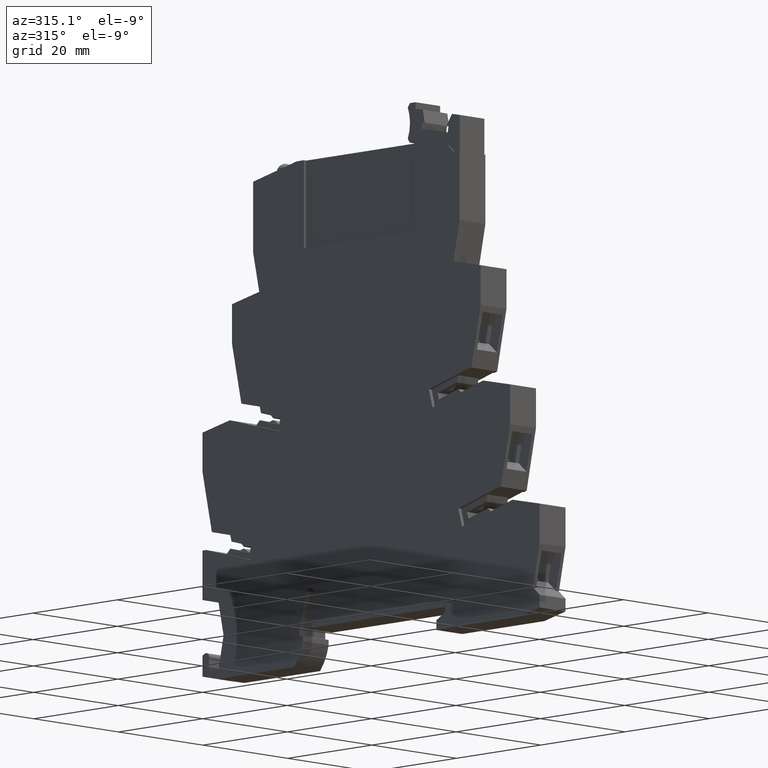
[diagram: clean part render]
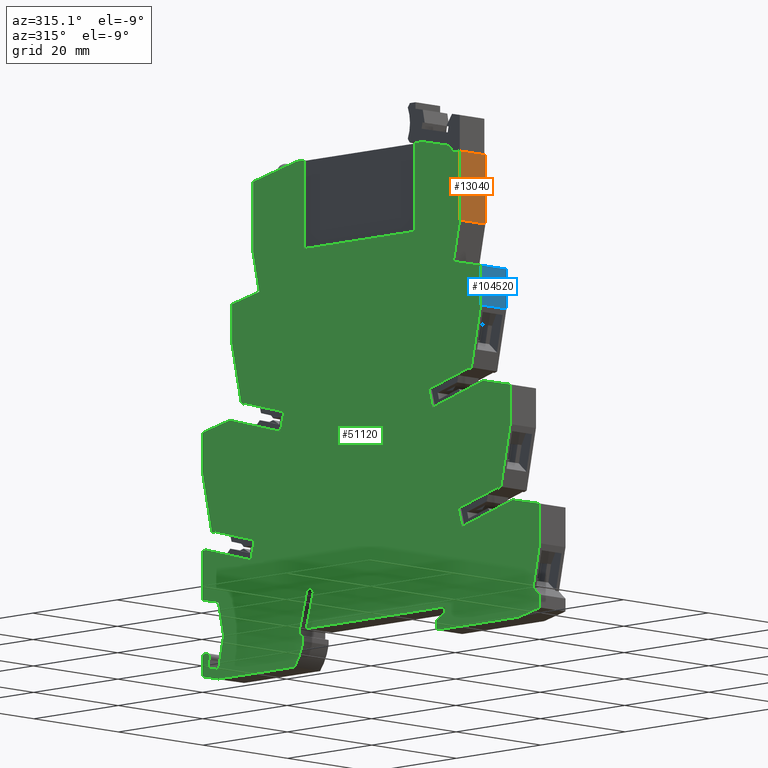
[diagram: same view with three faces highlighted in distinct colors, each labeled with its STEP entity id]
A machine part, auxiliary view with three faces highlighted in distinct colors.
Their STEP definitions:

[orange] entity #13040 — the highlighted planar face has unit normal (0, 1, -0).
#1720=CARTESIAN_POINT('',(-28.6010493288756,75.8542447664981,
-3.5527136788005E-15));
#1730=VERTEX_POINT('',#1720);
#1760=CARTESIAN_POINT('',(-28.6010493290614,64.5389695909309,
-2.04813943582849E-12));
#1770=DIRECTION('',(1.06627280559842E-13,1.,5.76150921084606E-16));
#1780=VECTOR('',#1770,1.);
#1790=LINE('',#1760,#1780);
#1800=CARTESIAN_POINT('',(-28.6010493290589,87.583147942921,
-2.03392858111329E-12));
#1810=VERTEX_POINT('',#1800);
#1820=EDGE_CURVE('',#1730,#1810,#1790,.T.);
#12740=CARTESIAN_POINT('',(-28.6010493290602,75.8542447673665,
-2.95230506708322E-12));
#12750=DIRECTION('',(1.,-1.06627280559842E-13,6.88518490957562E-14));
#12760=DIRECTION('',(-1.06627280559842E-13,-1.,-5.76150921084404E-16));
#12770=AXIS2_PLACEMENT_3D('',#12740,#12750,#12760);
#12780=PLANE('',#12770);
#12790=CARTESIAN_POINT('',(-28.6010493288651,87.5831479429395,
-13.900000000002));
#12800=DIRECTION('',(-6.05765437811069E-15,-5.76150921083959E-16,1.));
#12810=VECTOR('',#12800,1.);
#12820=LINE('',#12790,#12810);
#12830=CARTESIAN_POINT('',(-28.6010493290585,87.5831479429395,
-6.10000000000513));
#12840=VERTEX_POINT('',#12830);
#12850=EDGE_CURVE('',#12840,#1810,#12820,.T.);
#12860=ORIENTED_EDGE('',*,*,#12850,.F.);
#12870=ORIENTED_EDGE('',*,*,#1820,.T.);
#12880=CARTESIAN_POINT('',(-28.6010493290592,75.8542447673665,
-13.900000000002));
#12890=DIRECTION('',(-6.88518490957248E-14,2.9484730824779E-13,1.));
#12900=VECTOR('',#12890,1.);
#12910=LINE('',#12880,#12900);
#12920=CARTESIAN_POINT('',(-28.6010493290598,75.8542447673688,
-6.10000000000514));
#12930=VERTEX_POINT('',#12920);
#12940=EDGE_CURVE('',#12930,#1730,#12910,.T.);
#12950=ORIENTED_EDGE('',*,*,#12940,.T.);
#12960=CARTESIAN_POINT('',(-28.6010493290687,-8.45742666263268,
-6.10000000000518));
#12970=DIRECTION('',(1.06627280559842E-13,1.,5.76150921084798E-16));
#12980=VECTOR('',#12970,1.);
#12990=LINE('',#12960,#12980);
#13000=EDGE_CURVE('',#12930,#12840,#12990,.T.);
#13010=ORIENTED_EDGE('',*,*,#13000,.F.);
#13020=EDGE_LOOP('',(#13010,#12950,#12870,#12860));
#13030=FACE_OUTER_BOUND('',#13020,.T.);
#13040=ADVANCED_FACE('',(#13030),#12780,.F.);

[blue] entity #104520 — the highlighted planar face has unit normal (-0, 1, 0).
#1480=CARTESIAN_POINT('',(-33.6010493289925,60.8995198598723,
-2.28617125230812E-12));
#1490=VERTEX_POINT('',#1480);
#1520=CARTESIAN_POINT('',(-33.6010493289984,-8.45742666262793,
-2.28617125230812E-12));
#1530=DIRECTION('',(-8.59705591847893E-14,-1.,4.03965808802365E-27));
#1540=VECTOR('',#1530,1.);
#1550=LINE('',#1520,#1540);
#1560=CARTESIAN_POINT('',(-33.6010493289919,67.6331479428718,
-2.28705943072782E-12));
#1570=VERTEX_POINT('',#1560);
#1580=EDGE_CURVE('',#1570,#1490,#1550,.T.);
#49320=CARTESIAN_POINT('',(-33.6010493289921,67.6331479428718,
-6.1000000000037));
#49330=VERTEX_POINT('',#49320);
#49360=CARTESIAN_POINT('',(-33.6010493289924,64.5389695909299,
-6.10000000000199));
#49370=DIRECTION('',(-8.59705591847893E-14,-1.,-1.74170627111484E-27));
#49380=VECTOR('',#49370,1.);
#49390=LINE('',#49360,#49380);
#49400=CARTESIAN_POINT('',(-33.6010493289927,60.8995198598723,
-6.1000000000037));
#49410=VERTEX_POINT('',#49400);
#49420=EDGE_CURVE('',#49330,#49410,#49390,.T.);
#52860=CARTESIAN_POINT('',(-33.6010493289925,67.6331479428718,
-0.800000000005311));
#52870=DIRECTION('',(-1.0020697770065E-13,1.03479815318498E-26,-1.));
#52880=VECTOR('',#52870,1.);
#52890=LINE('',#52860,#52880);
#52900=EDGE_CURVE('',#1570,#49330,#52890,.T.);
#70240=CARTESIAN_POINT('',(-33.601049328993,60.8995198598721,
-0.800000000005311));
#70250=DIRECTION('',(-1.0020697770065E-13,1.04053711627046E-26,-1.));
#70260=VECTOR('',#70250,1.);
#70270=LINE('',#70240,#70260);
#70280=EDGE_CURVE('',#1490,#49410,#70270,.T.);
#104410=CARTESIAN_POINT('',(-33.6010493289921,67.6331479428718,
-6.10000000000447));
#104420=DIRECTION('',(1.,-8.59705591847893E-14,-3.74127829830043E-14));
#104430=DIRECTION('',(8.59705591847893E-14,1.,-3.71090030577279E-27));
#104440=AXIS2_PLACEMENT_3D('',#104410,#104420,#104430);
#104450=PLANE('',#104440);
#104460=ORIENTED_EDGE('',*,*,#49420,.T.);
#104470=ORIENTED_EDGE('',*,*,#52900,.T.);
#104480=ORIENTED_EDGE('',*,*,#1580,.F.);
#104490=ORIENTED_EDGE('',*,*,#70280,.F.);
#104500=EDGE_LOOP('',(#104490,#104480,#104470,#104460));
#104510=FACE_OUTER_BOUND('',#104500,.T.);
#104520=ADVANCED_FACE('',(#104510),#104450,.F.);

[green] entity #51120 — the highlighted planar face has unit normal (-1, 0, 0).
#6120=CARTESIAN_POINT('',(31.9989506709704,9.03370329290591,
-6.100000000001));
#6130=VERTEX_POINT('',#6120);
#6160=CARTESIAN_POINT('',(1.74895067094092,26.4985489359134,
-6.10000000000308));
#6170=DIRECTION('',(0.866025403784385,-0.500000000000092,
5.93414206662146E-14));
#6180=VECTOR('',#6170,1.);
#6190=LINE('',#6160,#6180);
#6200=CARTESIAN_POINT('',(32.3989506709844,8.80276318522189,
-6.10000000000097));
#6210=VERTEX_POINT('',#6200);
#6220=EDGE_CURVE('',#6130,#6210,#6190,.T.);
#8790=CARTESIAN_POINT('',(-17.9510493290123,75.1331479429036,
-6.1000000000044));
#8800=VERTEX_POINT('',#8790);
#8830=CARTESIAN_POINT('',(1.74895067094092,75.1331479429026,
-6.10000000000305));
#8840=DIRECTION('',(1.,-5.35592122515322E-14,6.88518490957563E-14));
#8850=VECTOR('',#8840,1.);
#8860=LINE('',#8830,#8850);
#8870=CARTESIAN_POINT('',(8.34895067098787,75.1331479429022,
-6.10000000000259));
#8880=VERTEX_POINT('',#8870);
#8890=EDGE_CURVE('',#8800,#8880,#8860,.T.);
#11100=CARTESIAN_POINT('',(13.9656962601114,44.7960089430289,
-6.10000000000222));
#11110=VERTEX_POINT('',#11100);
#11280=CARTESIAN_POINT('',(13.1115934112808,47.9835641697545,
-6.10000000000228));
#11290=VERTEX_POINT('',#11280);
#11320=CARTESIAN_POINT('',(28.2349113248289,-8.45742666263268,
-6.10000000000127));
#11330=DIRECTION('',(0.258819045102482,-0.965925826289079,
1.7277845820729E-14));
#11340=VECTOR('',#11330,1.);
#11350=LINE('',#11320,#11340);
#11360=EDGE_CURVE('',#11290,#11110,#11350,.T.);
#12830=CARTESIAN_POINT('',(-28.6010493290585,87.5831479429395,
-6.10000000000513));
#12840=VERTEX_POINT('',#12830);
#12920=CARTESIAN_POINT('',(-28.6010493290598,75.8542447673688,
-6.10000000000514));
#12930=VERTEX_POINT('',#12920);
#12960=CARTESIAN_POINT('',(-28.6010493290687,-8.45742666263268,
-6.10000000000518));
#12970=DIRECTION('',(1.06627280559842E-13,1.,5.76150921084798E-16));
#12980=VECTOR('',#12970,1.);
#12990=LINE('',#12960,#12980);
#13000=EDGE_CURVE('',#12930,#12840,#12990,.T.);
#14260=CARTESIAN_POINT('',(1.74895067094092,41.522541788591,
-6.10000000000307));
#14270=DIRECTION('',(0.965925826289113,0.258819045102354,
6.66272592653172E-14));
#14280=VECTOR('',#14270,1.);
#14290=LINE('',#14260,#14280);
#14300=CARTESIAN_POINT('',(25.9431765231824,48.0053650671908,
-6.1000000000014));
#14310=VERTEX_POINT('',#14300);
#14320=EDGE_CURVE('',#11110,#14310,#14290,.T.);
#15130=CARTESIAN_POINT('',(22.5148305366235,50.5031539240414,
-6.10000000000163));
#15140=VERTEX_POINT('',#15130);
#15170=CARTESIAN_POINT('',(1.74895067094092,44.938953183917,
-6.10000000000306));
#15180=DIRECTION('',(-0.96592582628915,-0.258819045102215,
-6.66272592653172E-14));
#15190=VECTOR('',#15180,1.);
#15200=LINE('',#15170,#15190);
#15210=EDGE_CURVE('',#15140,#11290,#15200,.T.);
#20310=CARTESIAN_POINT('',(10.6160940885706,4.43314794290278,
-6.10000000000248));
#20320=VERTEX_POINT('',#20310);
#20400=CARTESIAN_POINT('',(28.5989506709844,4.43314794290088,
-6.10000000000124));
#20410=VERTEX_POINT('',#20400);
#20440=CARTESIAN_POINT('',(1.74895067094092,4.43314794290373,
-6.10000000000309));
#20450=DIRECTION('',(-1.,1.06264632078761E-13,-6.88518490957562E-14));
#20460=VECTOR('',#20450,1.);
#20470=LINE('',#20440,#20460);
#20480=EDGE_CURVE('',#20410,#20320,#20470,.T.);
#22570=CARTESIAN_POINT('',(-25.1010493290152,9.73314794290628,
-6.10000000000493));
#22580=VERTEX_POINT('',#22570);
#22660=CARTESIAN_POINT('',(-25.1010493290156,10.6331479429065,
-6.10000000000493));
#22670=VERTEX_POINT('',#22660);
#22700=CARTESIAN_POINT('',(-25.1010493290176,-8.45742666263268,
-6.10000000000494));
#22710=DIRECTION('',(-1.06445956345116E-13,-1.,-5.76150921084786E-16));
#22720=VECTOR('',#22710,1.);
#22730=LINE('',#22700,#22720);
#22740=EDGE_CURVE('',#22670,#22580,#22730,.T.);
#22950=CARTESIAN_POINT('',(-37.7169289085011,29.5031538869772,
-6.10000000000579));
#22960=VERTEX_POINT('',#22950);
#23360=CARTESIAN_POINT('',(-28.3136920694185,26.9835641697074,
-6.10000000000514));
#23370=VERTEX_POINT('',#23360);
#23400=CARTESIAN_POINT('',(1.74895067094092,18.9283033250858,
-6.10000000000308));
#23410=DIRECTION('',(-0.965925826289093,0.258819045102429,
-6.63497035091609E-14));
#23420=VECTOR('',#23410,1.);
#23430=LINE('',#23400,#23420);
#23440=EDGE_CURVE('',#23370,#22960,#23430,.T.);
#26530=CARTESIAN_POINT('',(-19.7510496118478,90.1331479128581,
-6.10000000000452));
#26540=VERTEX_POINT('',#26530);
#26710=CARTESIAN_POINT('',(-25.9737184903316,88.8104787815217,
-6.10000000000495));
#26720=VERTEX_POINT('',#26710);
#26750=CARTESIAN_POINT('',(1.74895067094092,94.7031140187543,
-6.10000000000304));
#26760=DIRECTION('',(0.978147600733827,0.207911690817657,
6.74738043215939E-14));
#26770=VECTOR('',#26760,1.);
#26780=LINE('',#26750,#26770);
#26790=EDGE_CURVE('',#26720,#26540,#26780,.T.);
#26950=CARTESIAN_POINT('',(-17.9510493290112,90.1331479128579,
-6.1000000000044));
#26960=VERTEX_POINT('',#26950);
#27060=CARTESIAN_POINT('',(1.74895067094092,90.1331479128558,
-6.10000000000304));
#27070=DIRECTION('',(1.,-1.06264632095783E-13,6.88518490957562E-14));
#27080=VECTOR('',#27070,1.);
#27090=LINE('',#27060,#27080);
#27100=EDGE_CURVE('',#26540,#26960,#27090,.T.);
#27710=CARTESIAN_POINT('',(-27.2010493289862,87.5831479428673,
-6.10000000000503));
#27720=VERTEX_POINT('',#27710);
#27750=CARTESIAN_POINT('',(1.74895067094092,116.533147942791,
-6.10000000000302));
#27760=DIRECTION('',(0.707106781186593,0.707106781186502,
4.90996132640476E-14));
#27770=VECTOR('',#27760,1.);
#27780=LINE('',#27750,#27770);
#27790=EDGE_CURVE('',#27720,#26720,#27780,.T.);
#29610=CARTESIAN_POINT('',(27.4063960526576,11.6852159380575,
-6.10000000000132));
#29620=VERTEX_POINT('',#29610);
#29650=CARTESIAN_POINT('',(31.6596559868637,-8.45742666263268,
-6.10000000000104));
#29660=DIRECTION('',(-0.206601329565419,0.978425209518746,
-1.36418654150816E-14));
#29670=VECTOR('',#29660,1.);
#29680=LINE('',#29650,#29670);
#29690=CARTESIAN_POINT('',(28.599829422497,6.03333897585019,
-6.10000000000124));
#29700=VERTEX_POINT('',#29690);
#29710=EDGE_CURVE('',#29700,#29620,#29680,.T.);
#29990=CARTESIAN_POINT('',(30.8989506709376,6.53314794290252,
-6.10000000000108));
#30000=VERTEX_POINT('',#29990);
#30030=CARTESIAN_POINT('',(30.8989506709386,-8.45742666263268,
-6.10000000000109));
#30040=DIRECTION('',(6.74696212158443E-14,-1.,-5.76150921072814E-16));
#30050=VECTOR('',#30040,1.);
#30060=LINE('',#30030,#30050);
#30070=CARTESIAN_POINT('',(30.8989506709375,7.95358463520083,
-6.10000000000103));
#30080=VERTEX_POINT('',#30070);
#30090=EDGE_CURVE('',#30080,#30000,#30060,.T.);
#30340=CARTESIAN_POINT('',(31.5989506709376,8.34088296982149,
-6.10000000000103));
#30350=DIRECTION('',(-1.22464679914797E-16,-5.76150921084529E-16,1.));
#30360=DIRECTION('',(1.,1.49299883353168E-14,1.22464679914805E-16));
#30370=AXIS2_PLACEMENT_3D('',#30340,#30350,#30360);
#30380=CIRCLE('',#30370,0.8);
#30390=EDGE_CURVE('',#6130,#30080,#30380,.T.);
#30590=CARTESIAN_POINT('',(1.74895067094092,0.196191421163633,
-6.10000000000309));
#30600=DIRECTION('',(-0.977176363922798,-0.212429644331059,
-6.74182931703626E-14));
#30610=VECTOR('',#30600,1.);
#30620=LINE('',#30590,#30610);
#30630=EDGE_CURVE('',#30000,#29700,#30620,.T.);
#32050=CARTESIAN_POINT('',(7.79895067098446,10.6331479429029,
-6.10000000000267));
#32060=VERTEX_POINT('',#32050);
#32090=CARTESIAN_POINT('',(1.74895067094092,10.6331479429037,
-6.10000000000308));
#32100=DIRECTION('',(-1.,1.06264632078761E-13,-6.88518490957562E-14));
#32110=VECTOR('',#32100,1.);
#32120=LINE('',#32090,#32110);
#32130=EDGE_CURVE('',#32060,#22670,#32120,.T.);
#32510=CARTESIAN_POINT('',(20.3989506709407,75.8542454634982,
-6.10000000000176));
#32520=VERTEX_POINT('',#32510);
#32550=CARTESIAN_POINT('',(2.4779515351373,-8.45742666263268,
-6.10000000000305));
#32560=DIRECTION('',(-0.207911690818012,-0.978147600733752,
-1.48769885299771E-14));
#32570=VECTOR('',#32560,1.);
#32580=LINE('',#32550,#32570);
#32590=CARTESIAN_POINT('',(18.926618714528,68.9274682102203,
-6.10000000000187));
#32600=VERTEX_POINT('',#32590);
#32610=EDGE_CURVE('',#32520,#32600,#32580,.T.);
#32880=CARTESIAN_POINT('',(9.39895067098437,10.6331479429011,
-6.10000000000256));
#32890=VERTEX_POINT('',#32880);
#32970=CARTESIAN_POINT('',(9.39895067098426,9.6831479429027,
-6.10000000000256));
#32980=VERTEX_POINT('',#32970);
#33010=CARTESIAN_POINT('',(9.39895067098233,-8.45742666263268,
-6.10000000000257));
#33020=DIRECTION('',(1.06445956345116E-13,1.,5.76150921084786E-16));
#33030=VECTOR('',#33020,1.);
#33040=LINE('',#33010,#33030);
#33050=EDGE_CURVE('',#32980,#32890,#33040,.T.);
#33220=CARTESIAN_POINT('',(1.74895067094092,53.1480065266215,
-6.10000000000306));
#33230=DIRECTION('',(0.978147600733721,-0.207911690818157,
6.72517597166689E-14));
#33240=VECTOR('',#33230,1.);
#33250=LINE('',#33220,#33240);
#33260=CARTESIAN_POINT('',(32.398950523005,46.6331479428671,
-6.10000000000665));
#33270=VERTEX_POINT('',#33260);
#33280=EDGE_CURVE('',#14310,#33270,#33250,.T.);
#33920=CARTESIAN_POINT('',(20.9656962601106,23.7960089430282,
-6.10000000000175));
#33930=VERTEX_POINT('',#33920);
#34100=CARTESIAN_POINT('',(20.11159341128,26.983564169754,
-6.10000000000181));
#34110=VERTEX_POINT('',#34100);
#34140=CARTESIAN_POINT('',(29.6079782837753,-8.45742666263268,
-6.10000000000118));
#34150=DIRECTION('',(0.258819045102482,-0.965925826289079,
1.7277845820729E-14));
#34160=VECTOR('',#34150,1.);
#34170=LINE('',#34140,#34160);
#34180=EDGE_CURVE('',#34110,#33930,#34170,.T.);
#34760=CARTESIAN_POINT('',(32.3989506709826,-8.45742666263268,
-6.10000000000099));
#34770=DIRECTION('',(-1.06445956345116E-13,-1.,-5.76150921084786E-16));
#34780=VECTOR('',#34770,1.);
#34790=LINE('',#34760,#34780);
#34800=CARTESIAN_POINT('',(32.398950670984,5.23314794290049,
-6.10000000000098));
#34810=VERTEX_POINT('',#34800);
#34820=EDGE_CURVE('',#6210,#34810,#34790,.T.);
#35070=CARTESIAN_POINT('',(1.74895067094092,-1.21948363605273,
-6.10000000000309));
#35080=DIRECTION('',(-0.97854978498677,-0.206010481049744,
-6.75015598972095E-14));
#35090=VECTOR('',#35080,1.);
#35100=LINE('',#35070,#35090);
#35110=EDGE_CURVE('',#34810,#20410,#35100,.T.);
#35390=CARTESIAN_POINT('',(10.0489505230314,90.1331479429302,
-6.10000000000247));
#35400=VERTEX_POINT('',#35390);
#35430=CARTESIAN_POINT('',(1.74895067094092,91.9775923545063,
-6.10000000000304));
#35440=DIRECTION('',(0.976187060183942,-0.216930457818704,
6.70991040507829E-14));
#35450=VECTOR('',#35440,1.);
#35460=LINE('',#35430,#35450);
#35470=CARTESIAN_POINT('',(20.3989506709415,87.8331479100607,
-6.10000000000176));
#35480=VERTEX_POINT('',#35470);
#35490=EDGE_CURVE('',#35400,#35480,#35460,.T.);
#36150=CARTESIAN_POINT('',(8.59895067098442,8.59407599993581,
-6.10000000000261));
#36160=VERTEX_POINT('',#36150);
#36190=CARTESIAN_POINT('',(8.5989506709826,-8.45742666263268,
-6.10000000000262));
#36200=DIRECTION('',(1.06264632090662E-13,1.,5.76150921084773E-16));
#36210=VECTOR('',#36200,1.);
#36220=LINE('',#36190,#36210);
#36230=CARTESIAN_POINT('',(8.5989506709845,9.46878858895822,
-6.10000000000261));
#36240=VERTEX_POINT('',#36230);
#36250=EDGE_CURVE('',#36160,#36240,#36220,.T.);
#37780=CARTESIAN_POINT('',(6.17860602899768,16.4173491186215,
-6.10000000000278));
#37790=VERTEX_POINT('',#37780);
#37820=CARTESIAN_POINT('',(13.1468473527913,-8.45742666263268,
-6.10000000000231));
#37830=DIRECTION('',(0.269748530351836,-0.962930802484283,
1.80411241501588E-14));
#37840=VECTOR('',#37830,1.);
#37850=LINE('',#37820,#37840);
#37860=EDGE_CURVE('',#37790,#32060,#37850,.T.);
#38820=CARTESIAN_POINT('',(1.74895067094092,-5.76870678481362,
-6.10000000000309));
#38830=DIRECTION('',(0.866025403784386,-0.500000000000092,
5.93414206662146E-14));
#38840=VECTOR('',#38830,1.);
#38850=LINE('',#38820,#38840);
#38860=CARTESIAN_POINT('',(-23.1010493290159,8.57844740452747,
-6.1000000000048));
#38870=VERTEX_POINT('',#38860);
#38880=EDGE_CURVE('',#22580,#38870,#38850,.T.);
#39130=CARTESIAN_POINT('',(-23.1010493290178,-8.45742666263268,
-6.10000000000481));
#39140=DIRECTION('',(-1.06445956345116E-13,-1.,-5.76150921084786E-16));
#39150=VECTOR('',#39140,1.);
#39160=LINE('',#39130,#39150);
#39170=CARTESIAN_POINT('',(-23.1010493290161,6.93314794290058,
-6.1000000000048));
#39180=VERTEX_POINT('',#39170);
#39190=EDGE_CURVE('',#38870,#39180,#39160,.T.);
#39440=CARTESIAN_POINT('',(1.74895067094092,6.93314794289794,
-6.10000000000309));
#39450=DIRECTION('',(-1.,1.06445956333214E-13,-6.88518490957562E-14));
#39460=VECTOR('',#39450,1.);
#39470=LINE('',#39440,#39460);
#39480=CARTESIAN_POINT('',(-42.5510493290017,6.93314794290266,
-6.10000000000614));
#39490=VERTEX_POINT('',#39480);
#39500=EDGE_CURVE('',#39180,#39490,#39470,.T.);
#39750=CARTESIAN_POINT('',(1.74895067094092,-2.48310773907181,
-6.10000000000309));
#39760=DIRECTION('',(-0.978147600733785,0.207911690817859,
-6.7237881928861E-14));
#39770=VECTOR('',#39760,1.);
#39780=LINE('',#39750,#39770);
#39790=CARTESIAN_POINT('',(-47.6010493290191,8.00655857934053,
-6.10000000000648));
#39800=VERTEX_POINT('',#39790);
#39810=EDGE_CURVE('',#39490,#39800,#39780,.T.);
#40060=CARTESIAN_POINT('',(-47.6010493290209,-8.45742666263268,
-6.10000000000649));
#40070=DIRECTION('',(1.06264632074879E-13,1.,5.76150921084773E-16));
#40080=VECTOR('',#40070,1.);
#40090=LINE('',#40060,#40080);
#40100=CARTESIAN_POINT('',(-47.6010493290189,10.1874016427028,
-6.10000000000648));
#40110=VERTEX_POINT('',#40100);
#40120=EDGE_CURVE('',#39800,#40110,#40090,.T.);
#41470=CARTESIAN_POINT('',(32.3989506709854,18.2331479429005,
-6.10000000000097));
#41480=VERTEX_POINT('',#41470);
#41560=CARTESIAN_POINT('',(32.3989506710255,26.6331479428954,
-6.10000000000097));
#41570=VERTEX_POINT('',#41560);
#41600=CARTESIAN_POINT('',(32.3989506710218,-8.45742666263268,
-6.10000000000099));
#41610=DIRECTION('',(-1.06445956345116E-13,-1.,-5.76150921084786E-16));
#41620=VECTOR('',#41610,1.);
#41630=LINE('',#41600,#41620);
#41640=EDGE_CURVE('',#41570,#41480,#41630,.T.);
#45330=CARTESIAN_POINT('',(1.74895067094092,7.633336620794,
-6.10000000000309));
#45340=DIRECTION('',(0.965925826289096,0.258819045102418,
6.6641137053125E-14));
#45350=VECTOR('',#45340,1.);
#45360=LINE('',#45330,#45350);
#45370=EDGE_CURVE('',#36240,#32980,#45360,.T.);
#46430=CARTESIAN_POINT('',(1.74895067094092,87.5831479429363,
-6.10000000000304));
#46440=DIRECTION('',(1.,-1.06627280562636E-13,6.88518490957562E-14));
#46450=VECTOR('',#46440,1.);
#46460=LINE('',#46430,#46450);
#46470=EDGE_CURVE('',#12840,#27720,#46460,.T.);
#47550=CARTESIAN_POINT('',(32.3989506709835,-0.0400571378610444,
-6.10000000000098));
#47560=DIRECTION('',(6.88518490957563E-14,5.76150921077459E-16,-1.));
#47570=DIRECTION('',(-1.06445956345116E-13,-1.,-5.76150921084788E-16));
#47580=AXIS2_PLACEMENT_3D('',#47550,#47560,#47570);
#47590=PLANE('',#47580);
#47600=ORIENTED_EDGE('',*,*,#20480,.T.);
#47610=ORIENTED_EDGE('',*,*,#35110,.T.);
#47620=ORIENTED_EDGE('',*,*,#34820,.T.);
#47630=ORIENTED_EDGE('',*,*,#6220,.T.);
#47640=ORIENTED_EDGE('',*,*,#30390,.F.);
#47650=ORIENTED_EDGE('',*,*,#30090,.F.);
#47660=ORIENTED_EDGE('',*,*,#30630,.F.);
#47670=ORIENTED_EDGE('',*,*,#29710,.F.);
#47680=CARTESIAN_POINT('',(23.1658397156679,-8.45742666263268,
-6.10000000000162));
#47690=DIRECTION('',(-0.206010481049947,-0.978549784986727,
-1.47520884397068E-14));
#47700=VECTOR('',#47690,1.);
#47710=LINE('',#47680,#47700);
#47720=CARTESIAN_POINT('',(28.6173002801216,17.4370110185084,
-6.10000000000123));
#47730=VERTEX_POINT('',#47720);
#47740=EDGE_CURVE('',#47730,#29620,#47710,.T.);
#47750=ORIENTED_EDGE('',*,*,#47740,.T.);
#47760=CARTESIAN_POINT('',(1.74895067094092,11.780516363947,
-6.10000000000308));
#47770=DIRECTION('',(-0.97854978498677,-0.206010481049741,
-6.75015598972095E-14));
#47780=VECTOR('',#47770,1.);
#47790=LINE('',#47760,#47780);
#47800=EDGE_CURVE('',#41480,#47730,#47790,.T.);
#47810=ORIENTED_EDGE('',*,*,#47800,.T.);
#47820=ORIENTED_EDGE('',*,*,#41640,.T.);
#47830=CARTESIAN_POINT('',(1.74895067094092,26.6331479428987,
-6.10000000000308));
#47840=DIRECTION('',(1.,-1.06264632078761E-13,6.88518490957562E-14));
#47850=VECTOR('',#47840,1.);
#47860=LINE('',#47830,#47850);
#47870=CARTESIAN_POINT('',(31.5540430077884,26.6331479428955,
-6.10000000000102));
#47880=VERTEX_POINT('',#47870);
#47890=EDGE_CURVE('',#47880,#41570,#47860,.T.);
#47900=ORIENTED_EDGE('',*,*,#47890,.T.);
#47910=CARTESIAN_POINT('',(1.74895067094092,18.6468975209113,
-6.10000000000308));
#47920=DIRECTION('',(0.965925826289142,0.258819045102245,
6.6641137053125E-14));
#47930=VECTOR('',#47920,1.);
#47940=LINE('',#47910,#47930);
#47950=EDGE_CURVE('',#33930,#47880,#47940,.T.);
#47960=ORIENTED_EDGE('',*,*,#47950,.T.);
#47970=ORIENTED_EDGE('',*,*,#34180,.T.);
#47980=CARTESIAN_POINT('',(1.74895067094092,22.0633088765823,
-6.10000000000308));
#47990=DIRECTION('',(-0.965925826289113,-0.258819045102355,
-6.66272592653172E-14));
#48000=VECTOR('',#47990,1.);
#48010=LINE('',#47980,#48000);
#48020=CARTESIAN_POINT('',(29.5148302504916,29.5031538870577,
-6.10000000000116));
#48030=VERTEX_POINT('',#48020);
#48040=EDGE_CURVE('',#48030,#34110,#48010,.T.);
#48050=ORIENTED_EDGE('',*,*,#48040,.T.);
#48060=CARTESIAN_POINT('',(39.6863371529631,-8.45742666263268,
-6.10000000000048));
#48070=DIRECTION('',(-0.2588190451017,0.965925826289288,
-1.7277845820729E-14));
#48080=VECTOR('',#48070,1.);
#48090=LINE('',#48060,#48080);
#48100=CARTESIAN_POINT('',(29.5536458866786,29.3582919606791,
-6.10000000000116));
#48110=VERTEX_POINT('',#48100);
#48120=EDGE_CURVE('',#48110,#48030,#48090,.T.);
#48130=ORIENTED_EDGE('',*,*,#48120,.T.);
#48140=CARTESIAN_POINT('',(1.74895067094092,21.9080463318541,
-6.10000000000308));
#48150=DIRECTION('',(-0.965925826289288,-0.258819045101701,
-6.66272592653172E-14));
#48160=VECTOR('',#48150,1.);
#48170=LINE('',#48140,#48160);
#48180=CARTESIAN_POINT('',(30.1948635032599,29.5301057032142,
-6.10000000000112));
#48190=VERTEX_POINT('',#48180);
#48200=EDGE_CURVE('',#48190,#48110,#48170,.T.);
#48210=ORIENTED_EDGE('',*,*,#48200,.T.);
#48220=CARTESIAN_POINT('',(22.1203642372364,-8.45742666263268,
-6.10000000000169));
#48230=DIRECTION('',(-0.207911690818012,-0.978147600733752,
-1.48769885299771E-14));
#48240=VECTOR('',#48230,1.);
#48250=LINE('',#48220,#48240);
#48260=CARTESIAN_POINT('',(32.3989505230042,39.8995198598676,
-6.10000000000665));
#48270=VERTEX_POINT('',#48260);
#48280=EDGE_CURVE('',#48270,#48190,#48250,.T.);
#48290=ORIENTED_EDGE('',*,*,#48280,.T.);
#48300=CARTESIAN_POINT('',(32.3989505229954,-29.4574266626326,
-6.10000000000665));
#48310=DIRECTION('',(-1.26558704972732E-13,-1.,5.5507211519745E-27));
#48320=VECTOR('',#48310,1.);
#48330=LINE('',#48300,#48320);
#48340=EDGE_CURVE('',#33270,#48270,#48330,.T.);
#48350=ORIENTED_EDGE('',*,*,#48340,.T.);
#48360=ORIENTED_EDGE('',*,*,#33280,.T.);
#48370=ORIENTED_EDGE('',*,*,#14320,.T.);
#48380=ORIENTED_EDGE('',*,*,#11360,.T.);
#48390=ORIENTED_EDGE('',*,*,#15210,.T.);
#48400=CARTESIAN_POINT('',(38.3132704900853,-8.45742666263268,
-6.10000000000058));
#48410=DIRECTION('',(-0.258819045102404,0.9659258262891,
-1.7277845820729E-14));
#48420=VECTOR('',#48410,1.);
#48430=LINE('',#48400,#48420);
#48440=CARTESIAN_POINT('',(22.5536461827134,50.3582919607052,
-6.10000000000163));
#48450=VERTEX_POINT('',#48440);
#48460=EDGE_CURVE('',#48450,#15140,#48430,.T.);
#48470=ORIENTED_EDGE('',*,*,#48460,.T.);
#48480=CARTESIAN_POINT('',(1.74895067094092,44.783690599553,
-6.10000000000306));
#48490=DIRECTION('',(-0.965925826289099,-0.258819045102405,
-6.66272592653172E-14));
#48500=VECTOR('',#48490,1.);
#48510=LINE('',#48480,#48500);
#48520=CARTESIAN_POINT('',(23.1948634854665,50.5301056191509,
-6.10000000000159));
#48530=VERTEX_POINT('',#48520);
#48540=EDGE_CURVE('',#48530,#48450,#48510,.T.);
#48550=ORIENTED_EDGE('',*,*,#48540,.T.);
#48560=CARTESIAN_POINT('',(10.6566764422352,-8.45742666263268,
-6.10000000000248));
#48570=DIRECTION('',(-0.207911690818012,-0.978147600733752,
-1.48769885299771E-14));
#48580=VECTOR('',#48570,1.);
#48590=LINE('',#48560,#48580);
#48600=CARTESIAN_POINT('',(25.3989505230042,60.8995198598501,
-6.0999999999997));
#48610=VERTEX_POINT('',#48600);
#48620=EDGE_CURVE('',#48610,#48530,#48590,.T.);
#48630=ORIENTED_EDGE('',*,*,#48620,.T.);
#48640=CARTESIAN_POINT('',(25.3989505229954,-8.4574266626501,
-6.0999999999997));
#48650=DIRECTION('',(-1.26558704972732E-13,-1.,5.5507211519745E-27));
#48660=VECTOR('',#48650,1.);
#48670=LINE('',#48640,#48660);
#48680=CARTESIAN_POINT('',(25.3989505230051,67.6331479428497,
-6.0999999999997));
#48690=VERTEX_POINT('',#48680);
#48700=EDGE_CURVE('',#48690,#48610,#48670,.T.);
#48710=ORIENTED_EDGE('',*,*,#48700,.T.);
#48720=CARTESIAN_POINT('',(1.74895067094092,72.6601105949312,
-6.10000000000305));
#48730=DIRECTION('',(0.978147600733705,-0.207911690818232,
6.7237881928861E-14));
#48740=VECTOR('',#48730,1.);
#48750=LINE('',#48720,#48740);
#48760=CARTESIAN_POINT('',(18.9937630692096,68.994612564902,
-6.10000000000186));
#48770=VERTEX_POINT('',#48760);
#48780=EDGE_CURVE('',#48770,#48690,#48750,.T.);
#48790=ORIENTED_EDGE('',*,*,#48780,.T.);
#48800=CARTESIAN_POINT('',(1.74895067094092,51.7498001666351,
-6.10000000000306));
#48810=DIRECTION('',(-0.707106781186585,-0.70710678118651,
-4.90996132640475E-14));
#48820=VECTOR('',#48810,1.);
#48830=LINE('',#48800,#48820);
#48840=EDGE_CURVE('',#48770,#32600,#48830,.T.);
#48850=ORIENTED_EDGE('',*,*,#48840,.F.);
#48860=ORIENTED_EDGE('',*,*,#32610,.T.);
#48870=CARTESIAN_POINT('',(20.3989506709313,-8.45742666263268,
-6.10000000000181));
#48880=DIRECTION('',(-1.06627280585922E-13,-1.,-5.76150921084798E-16));
#48890=VECTOR('',#48880,1.);
#48900=LINE('',#48870,#48890);
#48910=EDGE_CURVE('',#35480,#32520,#48900,.T.);
#48920=ORIENTED_EDGE('',*,*,#48910,.T.);
#48930=ORIENTED_EDGE('',*,*,#35490,.T.);
#48940=CARTESIAN_POINT('',(1.74895067094092,90.1331479429311,
-6.10000000000304));
#48950=DIRECTION('',(1.,-1.06264632095782E-13,6.88518490957562E-14));
#48960=VECTOR('',#48950,1.);
#48970=LINE('',#48940,#48960);
#48980=CARTESIAN_POINT('',(8.34895067098856,90.1331479429304,
-6.10000000000258));
#48990=VERTEX_POINT('',#48980);
#49000=EDGE_CURVE('',#48990,#35400,#48970,.T.);
#49010=ORIENTED_EDGE('',*,*,#49000,.T.);
#49020=CARTESIAN_POINT('',(8.34895067098406,-8.45742666263268,
-6.10000000000264));
#49030=DIRECTION('',(4.56248183688777E-14,1.,5.76150921080599E-16));
#49040=VECTOR('',#49030,1.);
#49050=LINE('',#49020,#49040);
#49060=EDGE_CURVE('',#8880,#48990,#49050,.T.);
#49070=ORIENTED_EDGE('',*,*,#49060,.T.);
#49080=ORIENTED_EDGE('',*,*,#8890,.T.);
#49090=CARTESIAN_POINT('',(-17.9510493290183,-8.45742666263268,
-6.10000000000445));
#49100=DIRECTION('',(-7.21517471705881E-14,-1.,-5.76150921082426E-16));
#49110=VECTOR('',#49100,1.);
#49120=LINE('',#49090,#49110);
#49130=EDGE_CURVE('',#26960,#8800,#49120,.T.);
#49140=ORIENTED_EDGE('',*,*,#49130,.T.);
#49150=ORIENTED_EDGE('',*,*,#27100,.T.);
#49160=ORIENTED_EDGE('',*,*,#26790,.T.);
#49170=ORIENTED_EDGE('',*,*,#27790,.T.);
#49180=ORIENTED_EDGE('',*,*,#46470,.T.);
#49190=ORIENTED_EDGE('',*,*,#13000,.T.);
#49200=CARTESIAN_POINT('',(-10.6800503412425,-8.45742666263268,
-6.10000000000395));
#49210=DIRECTION('',(-0.207911690817804,0.978147600733796,
-1.37390099297363E-14));
#49220=VECTOR('',#49210,1.);
#49230=LINE('',#49200,#49220);
#49240=CARTESIAN_POINT('',(-27.1452750225528,69.0053651323703,
-6.10000000000504));
#49250=VERTEX_POINT('',#49240);
#49260=EDGE_CURVE('',#49250,#12930,#49230,.T.);
#49270=ORIENTED_EDGE('',*,*,#49260,.T.);
#49280=CARTESIAN_POINT('',(1.74895067094092,75.1470223979028,
-6.10000000000305));
#49290=DIRECTION('',(0.978147600733766,0.207911690817949,
6.74599265337861E-14));
#49300=VECTOR('',#49290,1.);
#49310=LINE('',#49280,#49300);
#49320=CARTESIAN_POINT('',(-33.6010493289921,67.6331479428718,
-6.1000000000037));
#49330=VERTEX_POINT('',#49320);
#49340=EDGE_CURVE('',#49330,#49250,#49310,.T.);
#49350=ORIENTED_EDGE('',*,*,#49340,.T.);
#49360=CARTESIAN_POINT('',(-33.6010493289924,64.5389695909299,
-6.10000000000199));
#49370=DIRECTION('',(-8.59705591847893E-14,-1.,-1.74170627111484E-27));
#49380=VECTOR('',#49370,1.);
#49390=LINE('',#49360,#49380);
#49400=CARTESIAN_POINT('',(-33.6010493289927,60.8995198598723,
-6.1000000000037));
#49410=VERTEX_POINT('',#49400);
#49420=EDGE_CURVE('',#49330,#49410,#49390,.T.);
#49430=ORIENTED_EDGE('',*,*,#49420,.F.);
#49440=CARTESIAN_POINT('',(-18.8587751001875,-8.45742666263268,
-6.10000000000451));
#49450=DIRECTION('',(-0.207911690817807,0.978147600733796,
-1.37390099297363E-14));
#49460=VECTOR('',#49450,1.);
#49470=LINE('',#49440,#49460);
#49480=CARTESIAN_POINT('',(-31.3969621612841,50.5301057032618,
-6.10000000000534));
#49490=VERTEX_POINT('',#49480);
#49500=EDGE_CURVE('',#49490,#49410,#49470,.T.);
#49510=ORIENTED_EDGE('',*,*,#49500,.T.);
#49520=CARTESIAN_POINT('',(1.74895067094092,41.6486851274686,
-6.10000000000307));
#49530=DIRECTION('',(-0.965925826289024,0.258819045102685,
-6.63358257213531E-14));
#49540=VECTOR('',#49530,1.);
#49550=LINE('',#49520,#49540);
#49560=CARTESIAN_POINT('',(-30.7557445446532,50.3582919607127,
-6.1000000000053));
#49570=VERTEX_POINT('',#49560);
#49580=EDGE_CURVE('',#49570,#49490,#49550,.T.);
#49590=ORIENTED_EDGE('',*,*,#49580,.T.);
#49600=CARTESIAN_POINT('',(-46.5153688520454,-8.45742666263268,
-6.10000000000642));
#49610=DIRECTION('',(-0.258819045102676,-0.965925826289027,
-1.83464354819307E-14));
#49620=VECTOR('',#49610,1.);
#49630=LINE('',#49600,#49620);
#49640=CARTESIAN_POINT('',(-30.7169288985632,50.5031539240512,
-6.1000000000053));
#49650=VERTEX_POINT('',#49640);
#49660=EDGE_CURVE('',#49650,#49570,#49630,.T.);
#49670=ORIENTED_EDGE('',*,*,#49660,.T.);
#49680=CARTESIAN_POINT('',(1.74895067094092,41.8039477118379,
-6.10000000000307));
#49690=DIRECTION('',(-0.96592582628908,0.258819045102477,
-6.63635812969687E-14));
#49700=VECTOR('',#49690,1.);
#49710=LINE('',#49680,#49700);
#49720=CARTESIAN_POINT('',(-21.3161418998061,47.9842205998348,
-6.10000000000465));
#49730=VERTEX_POINT('',#49720);
#49740=EDGE_CURVE('',#49730,#49650,#49710,.T.);
#49750=ORIENTED_EDGE('',*,*,#49740,.T.);
#49760=CARTESIAN_POINT('',(-36.4396357032687,-8.45742666263268,
-6.10000000000572));
#49770=DIRECTION('',(0.258819045102555,0.965925826289059,
1.83464354819307E-14));
#49780=VECTOR('',#49770,1.);
#49790=LINE('',#49760,#49780);
#49800=CARTESIAN_POINT('',(-22.1702447486371,44.7966653731087,
-6.10000000000471));
#49810=VERTEX_POINT('',#49800);
#49820=EDGE_CURVE('',#49810,#49730,#49790,.T.);
#49830=ORIENTED_EDGE('',*,*,#49820,.T.);
#49840=CARTESIAN_POINT('',(1.74895067094092,38.3875363165086,
-6.10000000000307));
#49850=DIRECTION('',(0.965925826289038,-0.258819045102634,
6.63635812969687E-14));
#49860=VECTOR('',#49850,1.);
#49870=LINE('',#49840,#49860);
#49880=CARTESIAN_POINT('',(-34.1452750815468,48.0053651198326,
-6.10000000000553));
#49890=VERTEX_POINT('',#49880);
#49900=EDGE_CURVE('',#49890,#49810,#49870,.T.);
#49910=ORIENTED_EDGE('',*,*,#49900,.T.);
#49920=CARTESIAN_POINT('',(1.74895067094092,55.6349183295963,
-6.10000000000306));
#49930=DIRECTION('',(0.978147600733766,0.207911690817949,
6.74599265337861E-14));
#49940=VECTOR('',#49930,1.);
#49950=LINE('',#49920,#49940);
#49960=CARTESIAN_POINT('',(-40.601049328995,46.6331479428621,
-6.09999999999949));
#49970=VERTEX_POINT('',#49960);
#49980=EDGE_CURVE('',#49970,#49890,#49950,.T.);
#49990=ORIENTED_EDGE('',*,*,#49980,.T.);
#50000=CARTESIAN_POINT('',(-40.6010493289953,43.5389695909201,
-6.09999999999778));
#50010=DIRECTION('',(-8.59705591847893E-14,-1.,-1.74170627111484E-27));
#50020=VECTOR('',#50010,1.);
#50030=LINE('',#50000,#50020);
#50040=CARTESIAN_POINT('',(-40.6010493289956,39.8995198598626,
-6.09999999999949));
#50050=VERTEX_POINT('',#50040);
#50060=EDGE_CURVE('',#49970,#50050,#50030,.T.);
#50070=ORIENTED_EDGE('',*,*,#50060,.F.);
#50080=CARTESIAN_POINT('',(-30.3224625991064,-8.45742666263268,
-6.1000000000053));
#50090=DIRECTION('',(-0.207911690817807,0.978147600733796,
-1.37390099297363E-14));
#50100=VECTOR('',#50090,1.);
#50110=LINE('',#50080,#50100);
#50120=CARTESIAN_POINT('',(-38.3969618472456,29.5301056191149,
-6.10000000000584));
#50130=VERTEX_POINT('',#50120);
#50140=EDGE_CURVE('',#50130,#50050,#50110,.T.);
#50150=ORIENTED_EDGE('',*,*,#50140,.T.);
#50160=CARTESIAN_POINT('',(1.74895067094092,18.7730407804491,
-6.10000000000308));
#50170=DIRECTION('',(-0.965925826289024,0.258819045102685,
-6.63358257213531E-14));
#50180=VECTOR('',#50170,1.);
#50190=LINE('',#50160,#50180);
#50200=CARTESIAN_POINT('',(-37.7557445446575,29.3582919607135,
-6.1000000000058));
#50210=VERTEX_POINT('',#50200);
#50220=EDGE_CURVE('',#50210,#50130,#50190,.T.);
#50230=ORIENTED_EDGE('',*,*,#50220,.T.);
#50240=CARTESIAN_POINT('',(-47.8884358109925,-8.45742666263268,
-6.10000000000651));
#50250=DIRECTION('',(-0.258819045102684,-0.965925826289025,
-1.83464354819307E-14));
#50260=VECTOR('',#50250,1.);
#50270=LINE('',#50240,#50260);
#50280=EDGE_CURVE('',#22960,#50210,#50270,.T.);
#50290=ORIENTED_EDGE('',*,*,#50280,.T.);
#50300=ORIENTED_EDGE('',*,*,#23440,.T.);
#50310=CARTESIAN_POINT('',(-37.8100769419042,-8.45742666263268,
-6.10000000000582));
#50320=DIRECTION('',(0.258819045102554,0.965925826289059,
1.83464354819307E-14));
#50330=VECTOR('',#50320,1.);
#50340=LINE('',#50310,#50330);
#50350=CARTESIAN_POINT('',(-29.1677949182364,23.7960089430301,
-6.10000000000521));
#50360=VERTEX_POINT('',#50350);
#50370=EDGE_CURVE('',#50360,#23370,#50340,.T.);
#50380=ORIENTED_EDGE('',*,*,#50370,.T.);
#50390=CARTESIAN_POINT('',(1.74895067094092,15.5118919694779,
-6.10000000000308));
#50400=DIRECTION('',(0.965925826288999,-0.258819045102781,
6.63358257213531E-14));
#50410=VECTOR('',#50400,1.);
#50420=LINE('',#50390,#50410);
#50430=CARTESIAN_POINT('',(-41.1452750161246,27.0053651022978,
-6.10000000000603));
#50440=VERTEX_POINT('',#50430);
#50450=EDGE_CURVE('',#50440,#50360,#50420,.T.);
#50460=ORIENTED_EDGE('',*,*,#50450,.T.);
#50470=CARTESIAN_POINT('',(1.74895067094092,36.122814229842,
-6.10000000000307));
#50480=DIRECTION('',(0.978147600733789,0.207911690817837,
6.74738043215939E-14));
#50490=VECTOR('',#50480,1.);
#50500=LINE('',#50470,#50490);
#50510=CARTESIAN_POINT('',(-47.6010491809855,25.6331479114264,
-6.10000000000317));
#50520=VERTEX_POINT('',#50510);
#50530=EDGE_CURVE('',#50520,#50440,#50500,.T.);
#50540=ORIENTED_EDGE('',*,*,#50530,.T.);
#50550=CARTESIAN_POINT('',(-47.6010491809857,22.5389695594844,
-6.10000000000147));
#50560=DIRECTION('',(-8.59705591847893E-14,-1.,-1.74170627111484E-27));
#50570=VECTOR('',#50560,1.);
#50580=LINE('',#50550,#50570);
#50590=CARTESIAN_POINT('',(-47.601049180986,18.8995198284269,
-6.10000000000317));
#50600=VERTEX_POINT('',#50590);
#50610=EDGE_CURVE('',#50520,#50600,#50580,.T.);
#50620=ORIENTED_EDGE('',*,*,#50610,.F.);
#50630=CARTESIAN_POINT('',(-48.3746381021905,22.5389695594845,
-6.10000000000139));
#50640=DIRECTION('',(0.207911690817737,-0.97814760073381,
-2.08342021654875E-14));
#50650=VECTOR('',#50640,1.);
#50660=LINE('',#50630,#50650);
#50670=CARTESIAN_POINT('',(-46.0467110794916,11.5869339958255,
-6.10000000000637));
#50680=VERTEX_POINT('',#50670);
#50690=EDGE_CURVE('',#50600,#50680,#50660,.T.);
#50700=ORIENTED_EDGE('',*,*,#50690,.F.);
#50710=CARTESIAN_POINT('',(1.74895067094092,54.6223412289782,
-6.10000000000306));
#50720=DIRECTION('',(0.743144825475798,0.669130606360631,
5.15143483426073E-14));
#50730=VECTOR('',#50720,1.);
#50740=LINE('',#50710,#50730);
#50750=EDGE_CURVE('',#40110,#50680,#50740,.T.);
#50760=ORIENTED_EDGE('',*,*,#50750,.T.);
#50770=ORIENTED_EDGE('',*,*,#40120,.T.);
#50780=ORIENTED_EDGE('',*,*,#39810,.T.);
#50790=ORIENTED_EDGE('',*,*,#39500,.T.);
#50800=ORIENTED_EDGE('',*,*,#39190,.T.);
#50810=ORIENTED_EDGE('',*,*,#38880,.T.);
#50820=ORIENTED_EDGE('',*,*,#22740,.T.);
#50830=ORIENTED_EDGE('',*,*,#32130,.T.);
#50840=ORIENTED_EDGE('',*,*,#37860,.T.);
#50850=CARTESIAN_POINT('',(6.9489506709851,16.6331479429031,
-6.10000000000272));
#50860=DIRECTION('',(6.88518490957563E-14,5.76150921077264E-16,-1.));
#50870=DIRECTION('',(1.,-1.06264632090662E-13,6.88518490957562E-14));
#50880=AXIS2_PLACEMENT_3D('',#50850,#50860,#50870);
#50890=CIRCLE('',#50880,0.799999999999996);
#50900=CARTESIAN_POINT('',(7.72125156992882,16.8418374766384,
-6.10000000000267));
#50910=VERTEX_POINT('',#50900);
#50920=EDGE_CURVE('',#37790,#50910,#50890,.T.);
#50930=ORIENTED_EDGE('',*,*,#50920,.F.);
#50940=CARTESIAN_POINT('',(14.5575658151806,-8.45742666263268,
-6.10000000000221));
#50950=DIRECTION('',(-0.260861917169094,0.965376123679711,
-1.7430501486615E-14));
#50960=VECTOR('',#50950,1.);
#50970=LINE('',#50940,#50960);
#50980=EDGE_CURVE('',#32890,#50910,#50970,.T.);
#50990=ORIENTED_EDGE('',*,*,#50980,.T.);
#51000=ORIENTED_EDGE('',*,*,#33050,.T.);
#51010=ORIENTED_EDGE('',*,*,#45370,.T.);
#51020=ORIENTED_EDGE('',*,*,#36250,.T.);
#51030=CARTESIAN_POINT('',(17.8989506709845,10.533147942902,
-6.10000000000197));
#51040=DIRECTION('',(6.88518490957563E-14,5.76150921077264E-16,-1.));
#51050=DIRECTION('',(1.,-1.06264632090662E-13,6.88518490957562E-14));
#51060=AXIS2_PLACEMENT_3D('',#51030,#51040,#51050);
#51070=CIRCLE('',#51060,9.49999999999998);
#51080=EDGE_CURVE('',#20320,#36160,#51070,.T.);
#51090=ORIENTED_EDGE('',*,*,#51080,.T.);
#51100=EDGE_LOOP('',(#51090,#51020,#51010,#51000,#50990,#50930,#50840,
#50830,#50820,#50810,#50800,#50790,#50780,#50770,#50760,#50700,#50620,
#50540,#50460,#50380,#50300,#50290,#50230,#50150,#50070,#49990,#49910,
#49830,#49750,#49670,#49590,#49510,#49430,#49350,#49270,#49190,#49180,
#49170,#49160,#49150,#49140,#49080,#49070,#49010,#48930,#48920,#48860,
#48850,#48790,#48710,#48630,#48550,#48470,#48390,#48380,#48370,#48360,
#48350,#48290,#48210,#48130,#48050,#47970,#47960,#47900,#47820,#47810,
#47750,#47670,#47660,#47650,#47640,#47630,#47620,#47610,#47600));
#51110=FACE_OUTER_BOUND('',#51100,.T.);
#51120=ADVANCED_FACE('',(#51110),#47590,.T.);